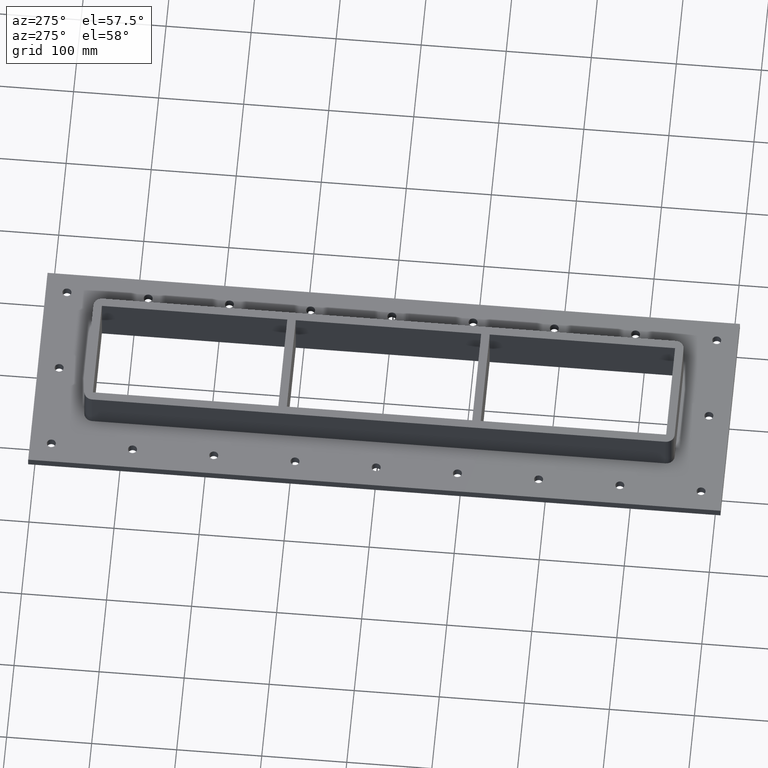
[diagram: clean part render]
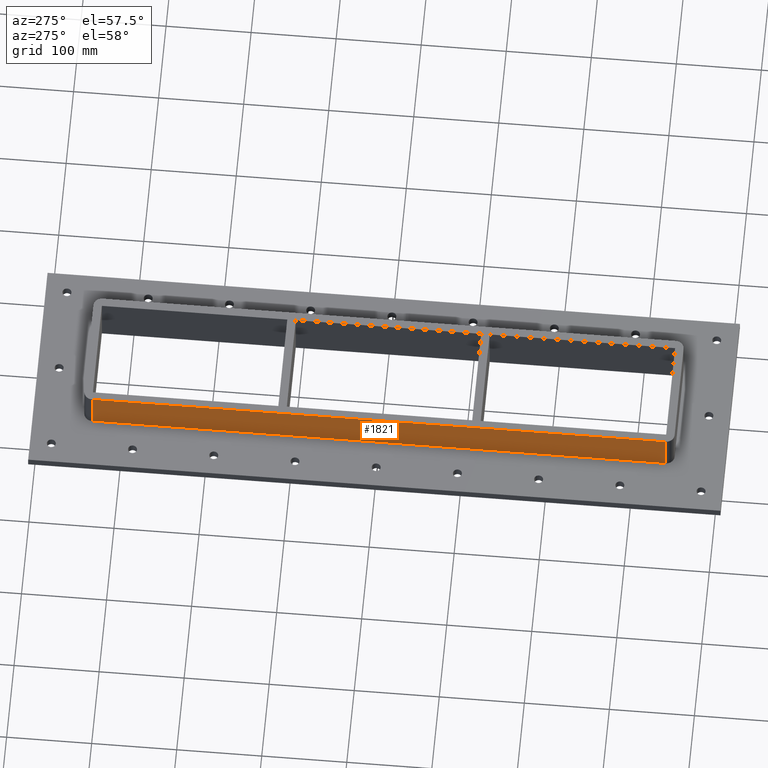
[diagram: same view with one face highlighted and labeled with its STEP entity id]
A machine part, auxiliary view. The second image highlights one B-rep face of the part: STEP entity #1821.
In plain terms, the highlighted planar face has unit normal (-1, 0, 0).
Its self-contained STEP definition (entity closure, byte-faithful):
#859=CARTESIAN_POINT('',(-70.249999999999986,-337.0,-17.0));
#860=VERTEX_POINT('',#859);
#868=CARTESIAN_POINT('',(-70.250000000000128,337.0,-17.0));
#869=VERTEX_POINT('',#868);
#870=CARTESIAN_POINT('',(-70.250000000000128,337.0,-17.0));
#871=DIRECTION('',(0.0,-1.0,0.0));
#872=VECTOR('',#871,674.0);
#873=LINE('',#870,#872);
#874=EDGE_CURVE('',#869,#860,#873,.T.);
#1440=CARTESIAN_POINT('',(-70.249999999999915,-337.0,30.0));
#1441=VERTEX_POINT('',#1440);
#1449=CARTESIAN_POINT('',(-70.249999999999915,-337.0,30.0));
#1450=DIRECTION('',(0.0,0.0,-1.0));
#1451=VECTOR('',#1450,47.0);
#1452=LINE('',#1449,#1451);
#1453=EDGE_CURVE('',#1441,#860,#1452,.T.);
#1464=CARTESIAN_POINT('',(-70.250000000000128,337.0,30.0));
#1465=VERTEX_POINT('',#1464);
#1466=CARTESIAN_POINT('',(-70.250000000000128,337.0,-17.0));
#1467=DIRECTION('',(0.0,0.0,1.0));
#1468=VECTOR('',#1467,47.0);
#1469=LINE('',#1466,#1468);
#1470=EDGE_CURVE('',#869,#1465,#1469,.T.);
#1805=CARTESIAN_POINT('',(-70.250000000000128,347.0,0.0));
#1806=DIRECTION('',(-1.0,0.0,0.0));
#1807=DIRECTION('',(0.0,-1.0,0.0));
#1808=AXIS2_PLACEMENT_3D('',#1805,#1806,#1807);
#1809=PLANE('',#1808);
#1810=ORIENTED_EDGE('',*,*,#874,.T.);
#1811=ORIENTED_EDGE('',*,*,#1453,.F.);
#1812=CARTESIAN_POINT('',(-70.250000000000128,337.0,30.0));
#1813=DIRECTION('',(0.0,-1.0,0.0));
#1814=VECTOR('',#1813,674.0);
#1815=LINE('',#1812,#1814);
#1816=EDGE_CURVE('',#1465,#1441,#1815,.T.);
#1817=ORIENTED_EDGE('',*,*,#1816,.F.);
#1818=ORIENTED_EDGE('',*,*,#1470,.F.);
#1819=EDGE_LOOP('',(#1810,#1811,#1817,#1818));
#1820=FACE_OUTER_BOUND('',#1819,.T.);
#1821=ADVANCED_FACE('',(#1820),#1809,.T.);